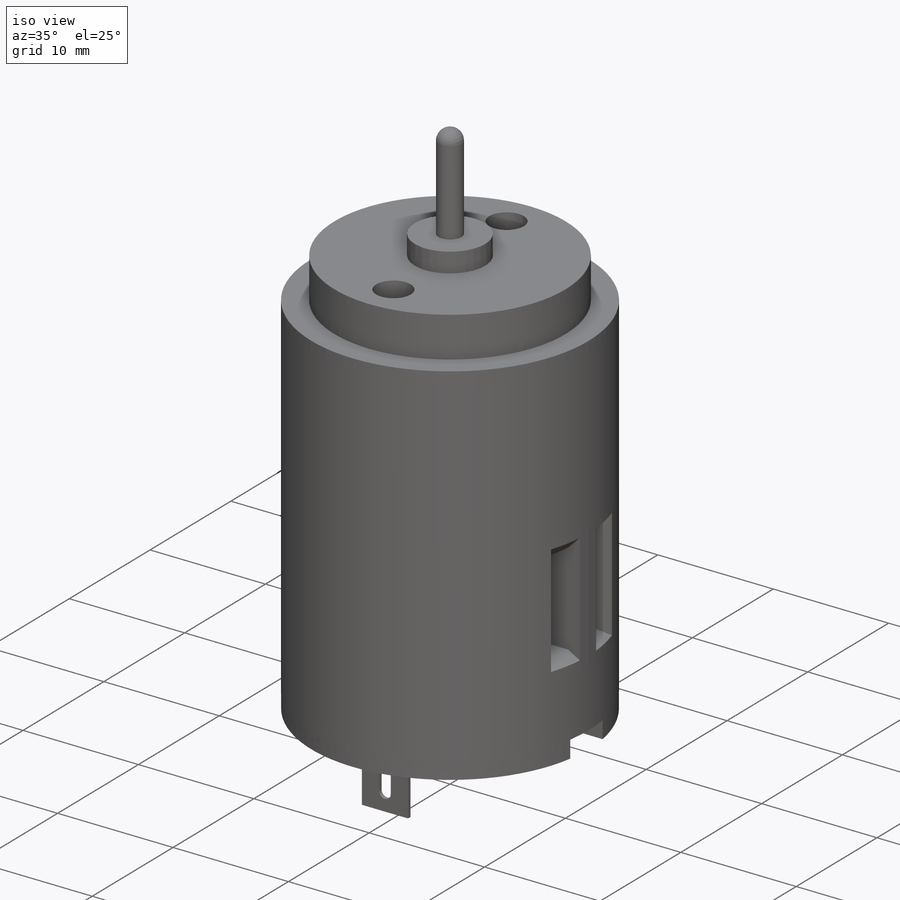
[diagram: iso view]
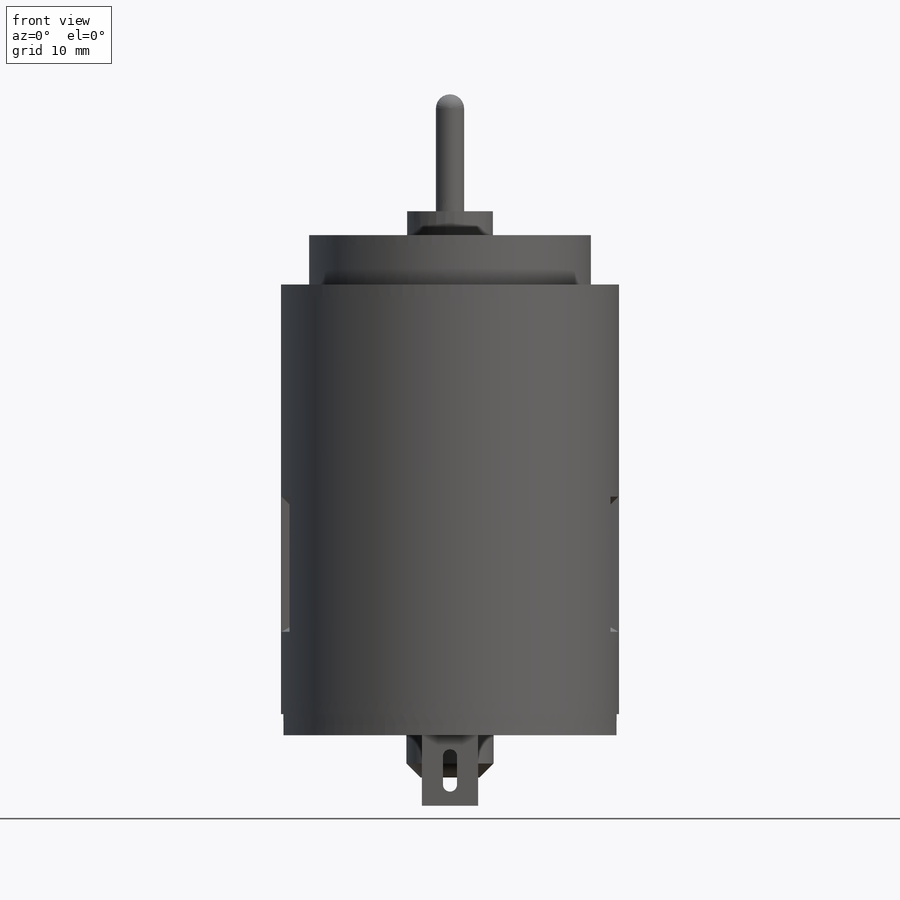
[diagram: front view]
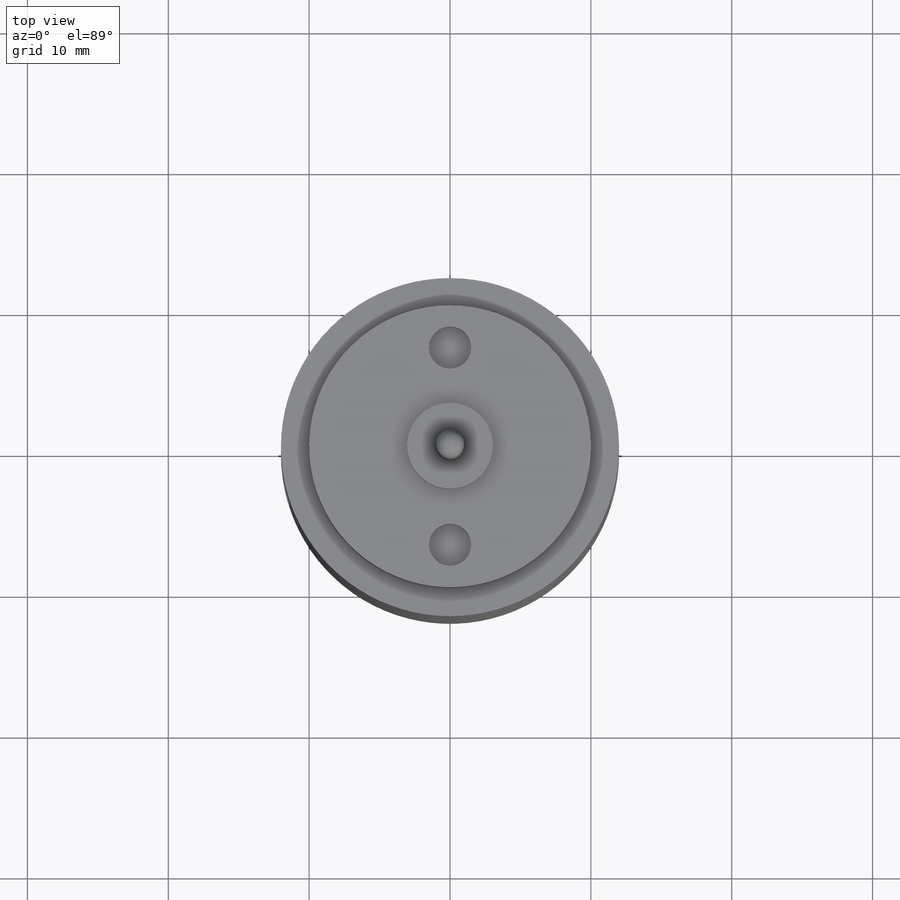
[diagram: top view]
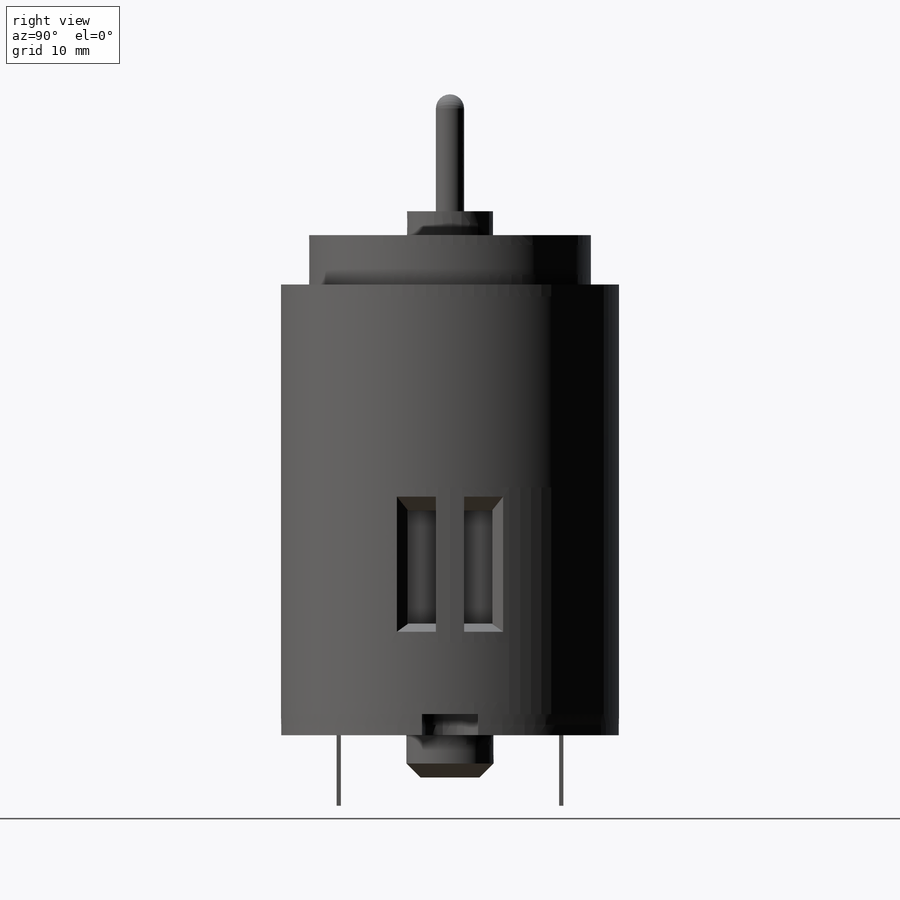
[diagram: right view]
SOLIDWORKS PART (.sldprt)
format: sldprt  version: not decoded by parser v0  size: 534,016 bytes
history: native  units: mm
features: sketch x15, extrude x9, chamfer x7, cut_extrude x6, fillet x2, material x1 (+14 scaffold rows collapsed)
feature tree (54):
  scaffold x14  (default folders/planes/origin — collapsed)
  material  "Material <not specified>"
  sketch  "Sketch1"  dims[D1=10.51mm]
  extrude  "Extrude1"  Depth=1.5mm
  sketch  "Sketch2"  dims[D1=10.5mm]
  extrude  "Extrude2"  Depth=30.5mm
  sketch  "Sketch3"  dims[D1=9.0mm]
  extrude  "Extrude3"  Depth=3.5mm
  sketch  "Sketch4"  dims[D1=~2.799685mm]
  extrude  "Extrude4"  Depth=1.7mm
  sketch  "Sketch5"  dims[D1=~1.323722mm]
  extrude  "Extrude5"  Depth=8.3mm
  sketch  "Sketch6"  dims[D1=~2.827486mm]
  extrude  "Extrude6"  Depth=3mm
  sketch  "Sketch7"  dims[D1=~1.559197mm]
  cut_extrude  "Cut-Extrude1"  Depth=3mm
  sketch  "Sketch8"  dims[D1=1.25mm]
  extrude  "Extrude7"  Depth=3mm
  fillet  "Fillet1"  Radius=1mm
  fillet  "Fillet2"  Radius=1mm
  chamfer  "Chamfer1"  Distance=1mm
  sketch  "Sketch9"  dims[D1=7.0mm D2=7.0mm]
  cut_extrude  "Cut-Extrude2"  Depth=2mm
  sketch  "Sketch10"  dims[D1=2.0mm]
  extrude  "Extrude8"  Depth=5mm
  sketch  "Sketch11"  dims[D1=1.0mm]
  cut_extrude  "Cut-Extrude3"  Depth=1mm
  sketch  "Sketch12"  dims[D1=1.0mm]
  cut_extrude  "Cut-Extrude4"  Depth=1mm
  sketch  "Sketch13"  dims[D1=2.0mm]
  cut_extrude  "Cut-Extrude5"  Depth=31mm
  sketch  "Sketch14"
  extrude  "Extrude9"  Depth=18mm
  chamfer  "Chamfer2"  Distance=1mm Angle=45deg
  chamfer  "Chamfer3"  Distance=1mm Angle=45deg
  chamfer  "Chamfer4"  Distance=1mm Angle=30deg
  chamfer  "Chamfer5"  Distance=1mm Angle=30deg
  chamfer  "Chamfer6"  Distance=1mm Angle=45deg
  chamfer  "Chamfer7"  Distance=1mm Angle=45deg
  sketch  "Sketch15"  dims[D1=~2.233759mm]
  cut_extrude  "Cut-Extrude6"  Depth=1.5mm
decode coverage: 38 of 39 modeling features carry decoded parameters
note: ~ marks probable driven/reference dimensions
note: suppression state not decoded; provenance and decode notes live in map.json
